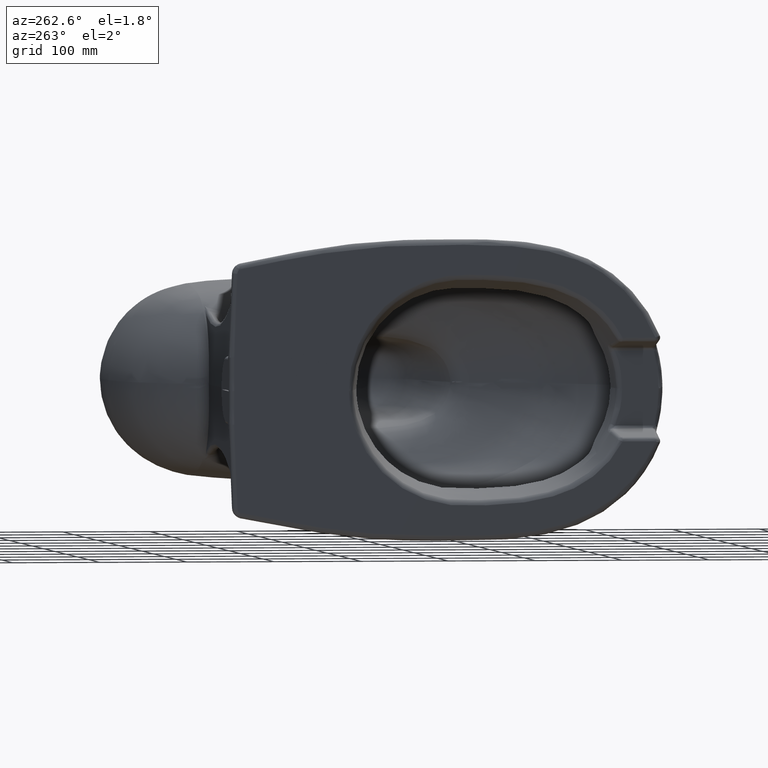
[diagram: clean part render]
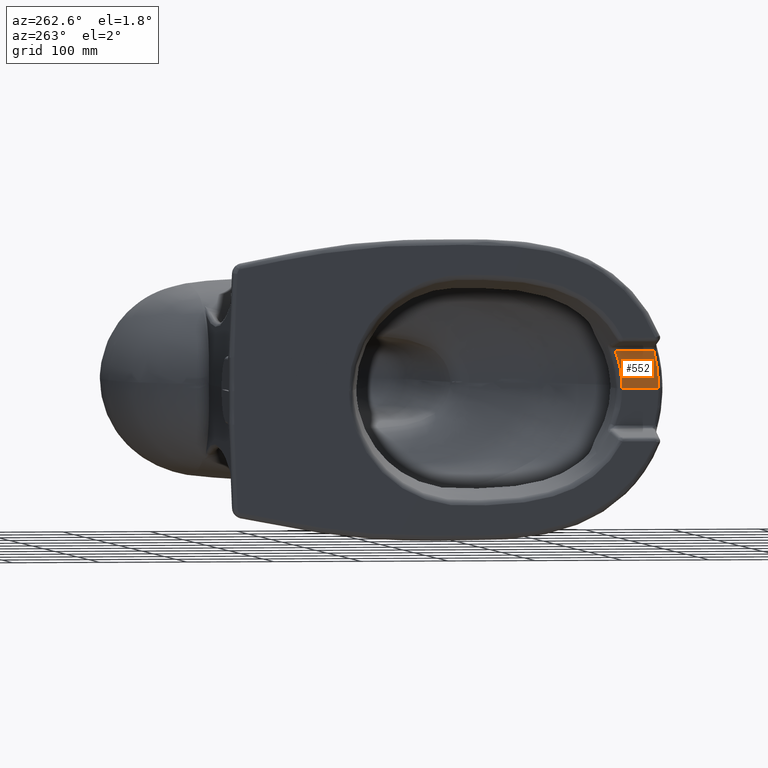
[diagram: same view with one face highlighted and labeled with its STEP entity id]
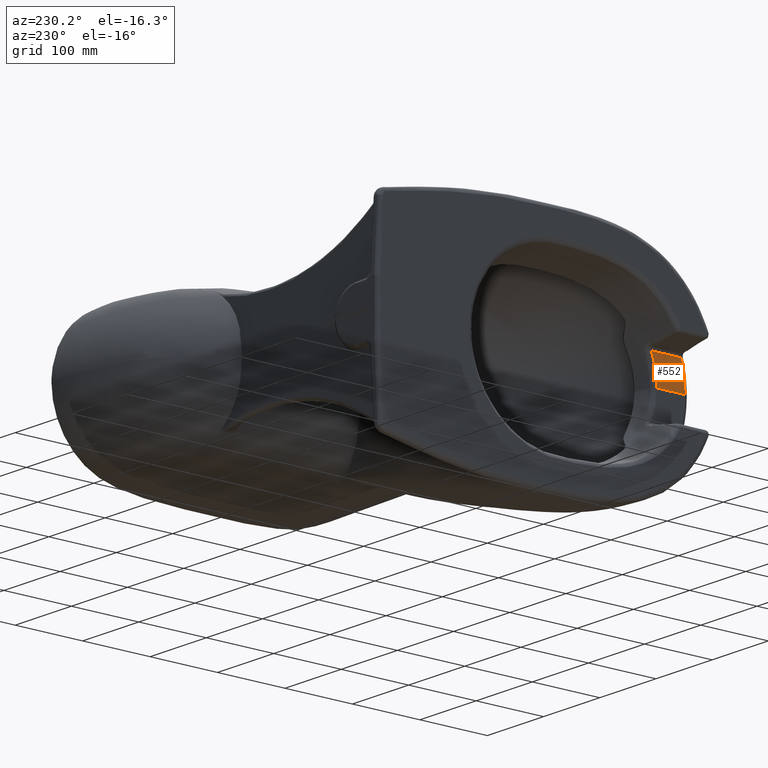
[diagram: same view with one face highlighted and labeled with its STEP entity id]
A machine part, auxiliary view. The second image highlights one B-rep face of the part: STEP entity #552.
A second angle (auxiliary view) of the same face is appended — the face is thin or edge-on in the first view.
In plain terms, the highlighted planar face has unit normal (-1, 0, 0).
Its self-contained STEP definition (entity closure, byte-faithful):
#137=PLANE('',#4739);
#178=LINE('',#34489,#229);
#229=VECTOR('',#4832,1.);
#552=ADVANCED_FACE('',(#1028),#137,.T.);
#1028=FACE_OUTER_BOUND('',#1325,.T.);
#1325=EDGE_LOOP('',(#2131,#2132,#2133,#2134));
#2131=ORIENTED_EDGE('',*,*,#3768,.F.);
#2132=ORIENTED_EDGE('',*,*,#3769,.F.);
#2133=ORIENTED_EDGE('',*,*,#3770,.F.);
#2134=ORIENTED_EDGE('',*,*,#3771,.F.);
#3191=VERTEX_POINT('',#34480);
#3192=VERTEX_POINT('',#34481);
#3193=VERTEX_POINT('',#34488);
#3194=VERTEX_POINT('',#34490);
#3768=EDGE_CURVE('',#3191,#3192,#4449,.T.);
#3769=EDGE_CURVE('',#3193,#3191,#4450,.T.);
#3770=EDGE_CURVE('',#3194,#3193,#178,.T.);
#3771=EDGE_CURVE('',#3192,#3194,#4451,.T.);
#4449=B_SPLINE_CURVE_WITH_KNOTS('',3,(#34476,#34477,#34478,#34479),
 .UNSPECIFIED.,.F.,.F.,(4,4),(0.,1.),.UNSPECIFIED.);
#4450=B_SPLINE_CURVE_WITH_KNOTS('',3,(#34482,#34483,#34484,#34485,#34486,
#34487),.UNSPECIFIED.,.F.,.F.,(4,2,4),(0.,0.496969337971012,1.),
 .UNSPECIFIED.);
#4451=B_SPLINE_CURVE_WITH_KNOTS('',3,(#34491,#34492,#34493,#34494,#34495,
#34496),.UNSPECIFIED.,.F.,.F.,(4,2,4),(0.,0.502999963373327,1.),
 .UNSPECIFIED.);
#4739=AXIS2_PLACEMENT_3D('',#34497,#4833,#4834);
#4832=DIRECTION('',(0.,1.,0.));
#4833=DIRECTION('',(-1.,0.,0.));
#4834=DIRECTION('',(0.,-1.40609746068776E-013,1.));
#34476=CARTESIAN_POINT('',(-423.394645158403,-440.486400060508,-765.268834183101));
#34477=CARTESIAN_POINT('',(-423.394645158403,-455.276704148029,-765.268834183101));
#34478=CARTESIAN_POINT('',(-423.394645158403,-470.06700823555,-765.268834183101));
#34479=CARTESIAN_POINT('',(-423.394645158403,-484.857312323071,-765.268834183101));
#34480=CARTESIAN_POINT('',(-423.394645158403,-440.486400060504,-765.268834183103));
#34481=CARTESIAN_POINT('',(-423.394645158403,-484.857312323071,-765.268834183101));
#34482=CARTESIAN_POINT('',(-423.394645158403,-448.636927488182,-807.904963362869));
#34483=CARTESIAN_POINT('',(-423.394645158403,-448.640125044773,-800.657154860465));
#34484=CARTESIAN_POINT('',(-423.394645158403,-447.963976785412,-793.448175346684));
#34485=CARTESIAN_POINT('',(-423.394645158403,-445.242673828842,-779.119323455571));
#34486=CARTESIAN_POINT('',(-423.394645158403,-443.198978771054,-772.090648307145));
#34487=CARTESIAN_POINT('',(-423.394645158403,-440.486398791842,-765.268834687569));
#34488=CARTESIAN_POINT('',(-423.394645158403,-448.636927488182,-807.904962775199));
#34489=CARTESIAN_POINT('',(-423.394645158403,-465.499470047753,-807.904962334447));
#34490=CARTESIAN_POINT('',(-423.394645158403,-490.499990736159,-807.904962775198));
#34491=CARTESIAN_POINT('',(-423.394645158403,-484.857312323071,-765.268834183101));
#34492=CARTESIAN_POINT('',(-423.394645158403,-486.811273883794,-772.242313191741));
#34493=CARTESIAN_POINT('',(-423.394645158403,-488.229675257648,-779.354012632583));
#34494=CARTESIAN_POINT('',(-423.394645158403,-490.078053647923,-793.626430580293));
#34495=CARTESIAN_POINT('',(-423.394645158403,-490.513625642306,-800.758650734456));
#34496=CARTESIAN_POINT('',(-423.394645158403,-490.499989121516,-807.904963359787));
#34497=CARTESIAN_POINT('',(-423.394645158403,-490.812696874858,-807.904963362867));